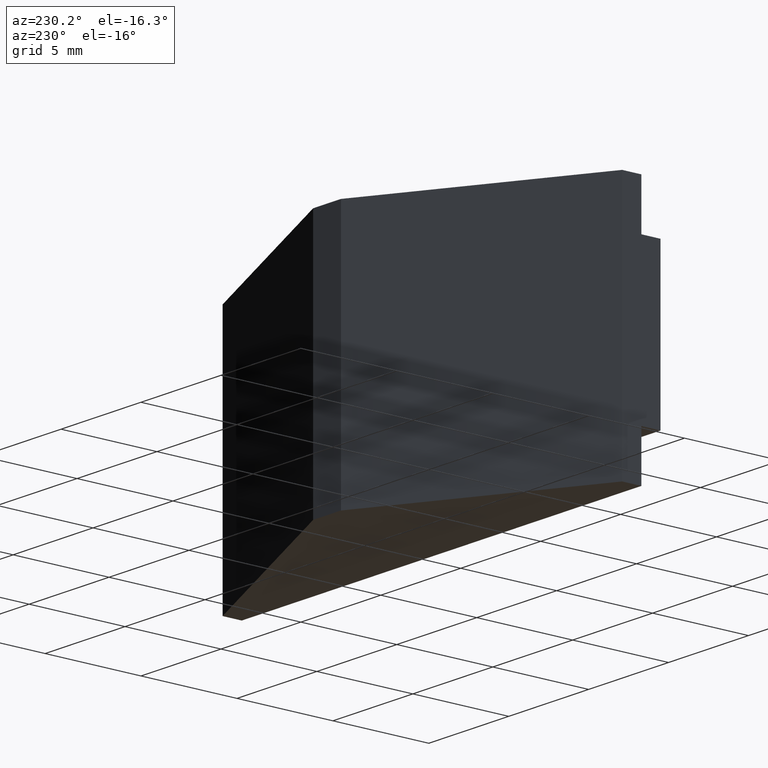
[diagram: clean part render]
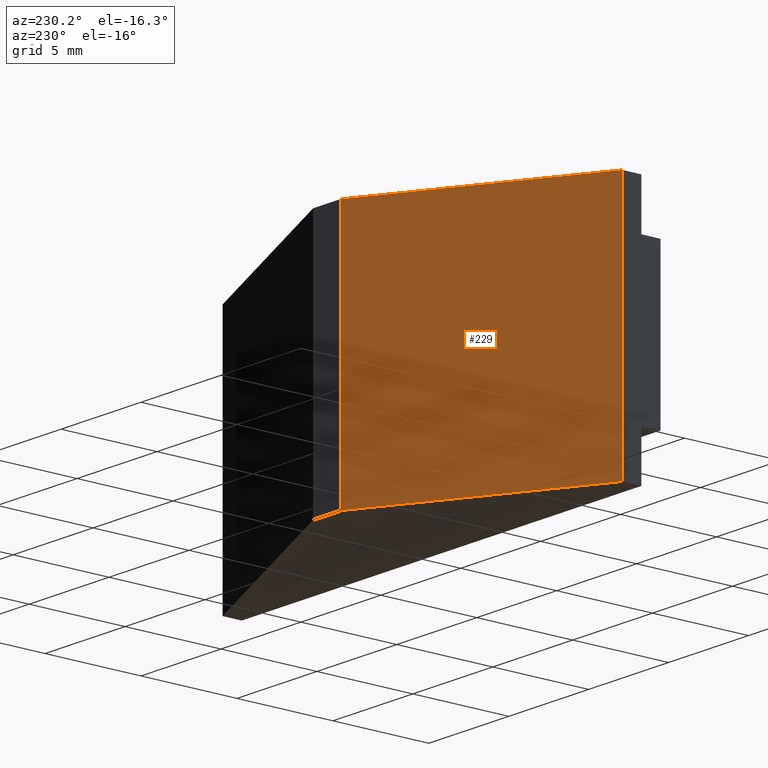
[diagram: same view with one face highlighted and labeled with its STEP entity id]
A machine part, auxiliary view. The second image highlights one B-rep face of the part: STEP entity #229.
In plain terms, the highlighted planar face has unit normal (-0.5, 0.866, 0).
Its self-contained STEP definition (entity closure, byte-faithful):
#23=FACE_OUTER_BOUND('',#35,.T.);
#35=EDGE_LOOP('',(#193,#194,#195,#196));
#55=LINE('',#360,#85);
#63=LINE('',#374,#93);
#64=LINE('',#377,#94);
#67=LINE('',#382,#97);
#85=VECTOR('',#296,10.);
#93=VECTOR('',#308,10.);
#94=VECTOR('',#311,10.);
#97=VECTOR('',#316,10.);
#111=VERTEX_POINT('',#357);
#112=VERTEX_POINT('',#359);
#116=VERTEX_POINT('',#372);
#117=VERTEX_POINT('',#376);
#135=EDGE_CURVE('',#112,#111,#55,.T.);
#143=EDGE_CURVE('',#116,#111,#63,.T.);
#144=EDGE_CURVE('',#112,#117,#64,.T.);
#147=EDGE_CURVE('',#117,#116,#67,.T.);
#193=ORIENTED_EDGE('',*,*,#135,.T.);
#194=ORIENTED_EDGE('',*,*,#143,.F.);
#195=ORIENTED_EDGE('',*,*,#147,.F.);
#196=ORIENTED_EDGE('',*,*,#144,.F.);
#217=PLANE('',#264);
#229=ADVANCED_FACE('',(#23),#217,.T.);
#264=AXIS2_PLACEMENT_3D('',#381,#314,#315);
#296=DIRECTION('',(0.,0.,1.));
#308=DIRECTION('',(-0.866025403784438,-0.5,0.));
#311=DIRECTION('',(0.866025403784438,0.5,0.));
#314=DIRECTION('center_axis',(-0.5,0.866025403784438,0.));
#315=DIRECTION('ref_axis',(-0.866025403784438,-0.5,0.));
#316=DIRECTION('',(0.,0.,1.));
#357=CARTESIAN_POINT('',(-12.5,2.,6.5));
#359=CARTESIAN_POINT('',(-12.5,2.,-6.5));
#360=CARTESIAN_POINT('',(-12.5,2.,0.));
#372=CARTESIAN_POINT('',(-2.10769515458674,8.,6.5));
#374=CARTESIAN_POINT('',(-2.10769515458674,8.,6.5));
#376=CARTESIAN_POINT('',(-2.10769515458674,8.,-6.5));
#377=CARTESIAN_POINT('',(-2.10769515458674,8.,-6.5));
#381=CARTESIAN_POINT('Origin',(-2.10769515458675,8.,0.));
#382=CARTESIAN_POINT('',(-2.10769515458674,8.,0.));